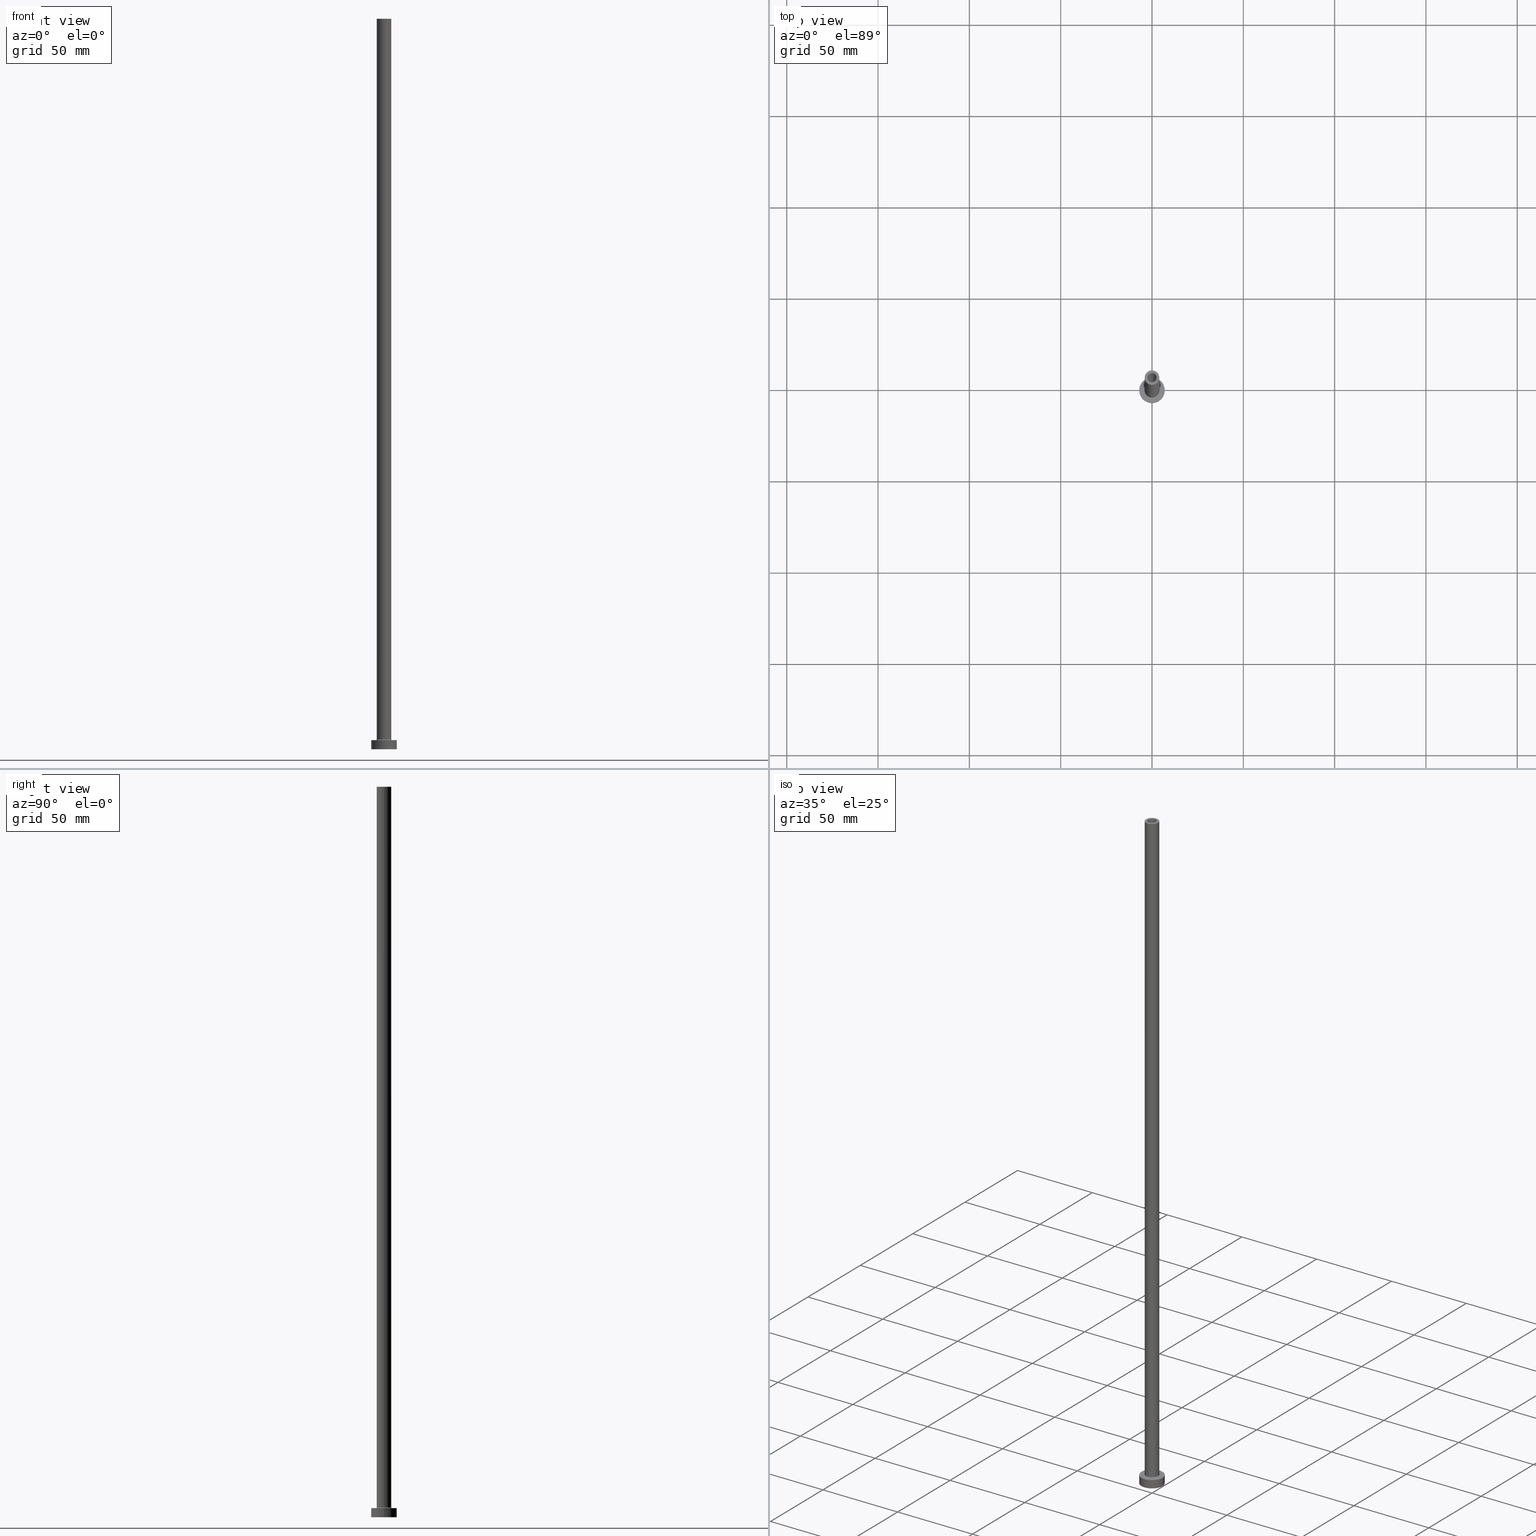
[diagram: canonical four-view strip — front | top / right | iso, engineering-drawing reading convention]
A machine part, canonical four-view strip (front | top / right | iso — engineering-drawing reading convention). The complete STEP part file that produces these views, byte-faithful:
ISO-10303-21;
HEADER;
FILE_DESCRIPTION (( 'STEP AP203' ),
    '1' );
FILE_NAME ('6f4e.STEP',
    '2023-02-13T17:09:35',
    ( '' ),
    ( '' ),
    'SwSTEP 2.0',
    'SolidWorks 2019',
    '' );
FILE_SCHEMA (( 'CONFIG_CONTROL_DESIGN' ));
ENDSEC;

DATA;
#1 = CARTESIAN_POINT ( 'NONE',  ( 0.000000000000000000, 0.000000000000000000, 355.0000000000000568 ) ) ;
#2 = ORIENTED_EDGE ( 'NONE', *, *, #404, .F. ) ;
#3 = AXIS2_PLACEMENT_3D ( 'NONE', #159, #332, #307 ) ;
#4 = ADVANCED_FACE ( 'NONE', ( #127, #188 ), #414, .F. ) ;
#5 = DIRECTION ( 'NONE',  ( -1.000000000000000000, 0.000000000000000000, 0.000000000000000000 ) ) ;
#6 = EDGE_CURVE ( 'NONE', #316, #295, #56, .T. ) ;
#7 = EDGE_LOOP ( 'NONE', ( #114, #183, #437, #357 ) ) ;
#8 = DIRECTION ( 'NONE',  ( 1.000000000000000000, 0.000000000000000000, 0.000000000000000000 ) ) ;
#9 = ORIENTED_EDGE ( 'NONE', *, *, #177, .F. ) ;
#10 = CIRCLE ( 'NONE', #160, 2.500000000000000000 ) ;
#11 = LOCAL_TIME ( 18, 9, 35.00000000000000000, #409 ) ;
#12 = DIRECTION ( 'NONE',  ( 0.000000000000000000, 0.000000000000000000, -1.000000000000000000 ) ) ;
#13 = ORIENTED_EDGE ( 'NONE', *, *, #343, .F. ) ;
#14 = CARTESIAN_POINT ( 'NONE',  ( -7.000000000000000000, 0.000000000000000000, 5.000000000000000000 ) ) ;
#15 = EDGE_LOOP ( 'NONE', ( #287, #112 ) ) ;
#16 = DIRECTION ( 'NONE',  ( 0.000000000000000000, 0.000000000000000000, -1.000000000000000000 ) ) ;
#17 = AXIS2_PLACEMENT_3D ( 'NONE', #423, #239, #27 ) ;
#18 = CIRCLE ( 'NONE', #368, 4.000000000000000000 ) ;
#19 = EDGE_CURVE ( 'NONE', #179, #295, #69, .T. ) ;
#20 = PERSON_AND_ORGANIZATION_ROLE ( 'creator' ) ;
#21 = CARTESIAN_POINT ( 'NONE',  ( -2.500000000000000000, 0.000000000000000000, 400.0000000000000000 ) ) ;
#22 = DIRECTION ( 'NONE',  ( 0.000000000000000000, 0.000000000000000000, -1.000000000000000000 ) ) ;
#23 = DESIGN_CONTEXT ( 'detailed design', #231, 'design' ) ;
#24 = DIRECTION ( 'NONE',  ( 1.000000000000000000, 0.000000000000000000, 0.000000000000000000 ) ) ;
#25 = MECHANICAL_CONTEXT ( 'NONE', #136, 'mechanical' ) ;
#26 = DIRECTION ( 'NONE',  ( -1.000000000000000000, 0.000000000000000000, 0.000000000000000000 ) ) ;
#27 = DIRECTION ( 'NONE',  ( 1.000000000000000000, 0.000000000000000000, -0.000000000000000000 ) ) ;
#28 = CC_DESIGN_DATE_AND_TIME_ASSIGNMENT ( #265, #372, ( #240 ) ) ;
#29 = FACE_OUTER_BOUND ( 'NONE', #220, .T. ) ;
#30 = ADVANCED_FACE ( 'NONE', ( #61 ), #441, .F. ) ;
#31 = AXIS2_PLACEMENT_3D ( 'NONE', #351, #436, #5 ) ;
#32 = CIRCLE ( 'NONE', #73, 7.000000000000000000 ) ;
#33 = CARTESIAN_POINT ( 'NONE',  ( -2.649999999999999911, 0.000000000000000000, 0.000000000000000000 ) ) ;
#34 = FACE_OUTER_BOUND ( 'NONE', #36, .T. ) ;
#35 = DIRECTION ( 'NONE',  ( -1.000000000000000000, 0.000000000000000000, 0.000000000000000000 ) ) ;
#36 = EDGE_LOOP ( 'NONE', ( #210, #247, #82, #364 ) ) ;
#37 = CIRCLE ( 'NONE', #46, 0.5000000000000004441 ) ;
#38 = DIRECTION ( 'NONE',  ( 1.000000000000000000, 0.000000000000000000, 0.000000000000000000 ) ) ;
#39 = FACE_OUTER_BOUND ( 'NONE', #7, .T. ) ;
#40 = VERTEX_POINT ( 'NONE', #225 ) ;
#41 = CC_DESIGN_PERSON_AND_ORGANIZATION_ASSIGNMENT ( #228, #156, ( #47 ) ) ;
#42 = LINE ( 'NONE', #150, #426 ) ;
#43 = ORIENTED_EDGE ( 'NONE', *, *, #413, .T. ) ;
#44 = CARTESIAN_POINT ( 'NONE',  ( 0.000000000000000000, 0.000000000000000000, 400.0000000000000000 ) ) ;
#45 = VERTEX_POINT ( 'NONE', #62 ) ;
#46 = AXIS2_PLACEMENT_3D ( 'NONE', #432, #72, #209 ) ;
#47 = PRODUCT_DEFINITION_FORMATION_WITH_SPECIFIED_SOURCE ( 'LIBOVOLN�', '', #422, .NOT_KNOWN. ) ;
#48 = CARTESIAN_POINT ( 'NONE',  ( 0.000000000000000000, 0.000000000000000000, 400.0000000000000000 ) ) ;
#49 = ORIENTED_EDGE ( 'NONE', *, *, #413, .F. ) ;
#50 = TOROIDAL_SURFACE ( 'NONE', #164, 4.500000000000000888, 0.5000000000000000000 ) ;
#51 = ORIENTED_EDGE ( 'NONE', *, *, #177, .T. ) ;
#52 = CALENDAR_DATE ( 2023, 13, 2 ) ;
#53 = ORIENTED_EDGE ( 'NONE', *, *, #346, .F. ) ;
#54 = CC_DESIGN_APPROVAL ( #245, ( #348 ) ) ;
#55 = PERSON_AND_ORGANIZATION_ROLE ( 'classification_officer' ) ;
#56 = LINE ( 'NONE', #302, #403 ) ;
#57 = DIRECTION ( 'NONE',  ( 1.000000000000000000, 0.000000000000000000, 0.000000000000000000 ) ) ;
#58 = ORIENTED_EDGE ( 'NONE', *, *, #99, .T. ) ;
#59 = UNCERTAINTY_MEASURE_WITH_UNIT (LENGTH_MEASURE( 1.000000000000000082E-05 ), #186, 'distance_accuracy_value', 'NONE');
#60 = DATE_AND_TIME ( #374, #308 ) ;
#61 = FACE_OUTER_BOUND ( 'NONE', #108, .T. ) ;
#62 = CARTESIAN_POINT ( 'NONE',  ( 4.000000000000000000, 4.898587196589411843E-16, 400.0000000000000000 ) ) ;
#63 = DIRECTION ( 'NONE',  ( 0.000000000000000000, 0.000000000000000000, -1.000000000000000000 ) ) ;
#64 = FACE_OUTER_BOUND ( 'NONE', #78, .T. ) ;
#65 = AXIS2_PLACEMENT_3D ( 'NONE', #205, #458, #350 ) ;
#66 = CARTESIAN_POINT ( 'NONE',  ( 4.500000000000000888, 0.000000000000000000, 5.000000000000002665 ) ) ;
#67 = DIRECTION ( 'NONE',  ( 0.000000000000000000, -1.000000000000000000, 0.000000000000000000 ) ) ;
#68 = EDGE_CURVE ( 'NONE', #242, #316, #129, .T. ) ;
#69 = CIRCLE ( 'NONE', #365, 7.000000000000000000 ) ;
#70 = FACE_OUTER_BOUND ( 'NONE', #410, .T. ) ;
#71 = ORIENTED_EDGE ( 'NONE', *, *, #306, .F. ) ;
#72 = DIRECTION ( 'NONE',  ( 1.224646799147353207E-16, 1.000000000000000000, -0.000000000000000000 ) ) ;
#73 = AXIS2_PLACEMENT_3D ( 'NONE', #294, #113, #173 ) ;
#74 = ORIENTED_EDGE ( 'NONE', *, *, #260, .T. ) ;
#75 = CARTESIAN_POINT ( 'NONE',  ( 7.000000000000000000, 8.572527594031473190E-16, 5.000000000000000000 ) ) ;
#76 = VERTEX_POINT ( 'NONE', #21 ) ;
#77 = CARTESIAN_POINT ( 'NONE',  ( 0.000000000000000000, 0.000000000000000000, 400.0000000000000000 ) ) ;
#78 = EDGE_LOOP ( 'NONE', ( #250, #227, #103, #74 ) ) ;
#79 = CARTESIAN_POINT ( 'NONE',  ( 2.649999999999999911, 3.245314017740485962E-16, 355.0000000000000568 ) ) ;
#80 = ORIENTED_EDGE ( 'NONE', *, *, #312, .T. ) ;
#81 = AXIS2_PLACEMENT_3D ( 'NONE', #133, #381, #345 ) ;
#82 = ORIENTED_EDGE ( 'NONE', *, *, #297, .F. ) ;
#83 = DIRECTION ( 'NONE',  ( 1.000000000000000000, 0.000000000000000000, 0.000000000000000000 ) ) ;
#84 = ORIENTED_EDGE ( 'NONE', *, *, #174, .F. ) ;
#85 = PERSON_AND_ORGANIZATION_ROLE ( 'creator' ) ;
#86 = EDGE_LOOP ( 'NONE', ( #202, #401, #71, #388 ) ) ;
#87 = CC_DESIGN_APPROVAL ( #457, ( #47 ) ) ;
#88 = DATE_TIME_ROLE ( 'classification_date' ) ;
#89 = DIRECTION ( 'NONE',  ( 0.000000000000000000, 0.000000000000000000, 1.000000000000000000 ) ) ;
#90 = PERSON_AND_ORGANIZATION ( #214, #320 ) ;
#91 = CARTESIAN_POINT ( 'NONE',  ( 0.000000000000000000, 0.000000000000000000, 5.000000000000000000 ) ) ;
#92 = EDGE_CURVE ( 'NONE', #216, #45, #184, .T. ) ;
#93 = ORIENTED_EDGE ( 'NONE', *, *, #421, .T. ) ;
#94 = EDGE_CURVE ( 'NONE', #76, #40, #263, .T. ) ;
#95 = LOCAL_TIME ( 18, 9, 35.00000000000000000, #443 ) ;
#96 = ADVANCED_FACE ( 'NONE', ( #444 ), #50, .F. ) ;
#97 = DIRECTION ( 'NONE',  ( 0.000000000000000000, 0.000000000000000000, -1.000000000000000000 ) ) ;
#98 = PLANE ( 'NONE',  #17 ) ;
#99 = EDGE_CURVE ( 'NONE', #185, #40, #223, .T. ) ;
#100 = CYLINDRICAL_SURFACE ( 'NONE', #172, 7.000000000000000000 ) ;
#101 = VECTOR ( 'NONE', #182, 1000.000000000000000 ) ;
#102 = DIRECTION ( 'NONE',  ( 0.000000000000000000, 0.000000000000000000, 1.000000000000000000 ) ) ;
#103 = ORIENTED_EDGE ( 'NONE', *, *, #174, .T. ) ;
#104 = DIRECTION ( 'NONE',  ( 1.000000000000000000, 0.000000000000000000, 0.000000000000000000 ) ) ;
#105 = SHAPE_DEFINITION_REPRESENTATION ( #411, #122 ) ;
#106 = EDGE_CURVE ( 'NONE', #316, #242, #199, .T. ) ;
#107 = DIRECTION ( 'NONE',  ( -0.000000000000000000, -0.000000000000000000, -1.000000000000000000 ) ) ;
#108 = EDGE_LOOP ( 'NONE', ( #261, #398, #304, #110 ) ) ;
#109 = CARTESIAN_POINT ( 'NONE',  ( 4.000000000000000000, 4.898587196589411843E-16, 400.0000000000000000 ) ) ;
#110 = ORIENTED_EDGE ( 'NONE', *, *, #99, .F. ) ;
#111 = CYLINDRICAL_SURFACE ( 'NONE', #187, 7.000000000000000000 ) ;
#112 = ORIENTED_EDGE ( 'NONE', *, *, #169, .T. ) ;
#113 = DIRECTION ( 'NONE',  ( 0.000000000000000000, 0.000000000000000000, 1.000000000000000000 ) ) ;
#114 = ORIENTED_EDGE ( 'NONE', *, *, #6, .F. ) ;
#115 = CARTESIAN_POINT ( 'NONE',  ( 0.000000000000000000, 0.000000000000000000, 5.500000000000005329 ) ) ;
#116 = ORIENTED_EDGE ( 'NONE', *, *, #312, .F. ) ;
#117 = PERSON_AND_ORGANIZATION ( #214, #320 ) ;
#118 = ORIENTED_EDGE ( 'NONE', *, *, #404, .T. ) ;
#119 = AXIS2_PLACEMENT_3D ( 'NONE', #266, #124, #375 ) ;
#120 = APPROVAL_DATE_TIME ( #335, #371 ) ;
#121 = DIRECTION ( 'NONE',  ( 0.000000000000000000, 0.000000000000000000, -1.000000000000000000 ) ) ;
#122 = ADVANCED_BREP_SHAPE_REPRESENTATION ( '6f4e', ( #415, #161 ), #237 ) ;
#123 = CALENDAR_DATE ( 2023, 13, 2 ) ;
#124 = DIRECTION ( 'NONE',  ( 0.000000000000000000, 0.000000000000000000, 1.000000000000000000 ) ) ;
#125 = AXIS2_PLACEMENT_3D ( 'NONE', #273, #63, #378 ) ;
#126 = APPLICATION_PROTOCOL_DEFINITION ( 'international standard', 'config_control_design', 1994, #136 ) ;
#127 = FACE_BOUND ( 'NONE', #394, .T. ) ;
#128 = APPROVAL_ROLE ( '' ) ;
#129 = CIRCLE ( 'NONE', #264, 7.000000000000000000 ) ;
#130 = ORIENTED_EDGE ( 'NONE', *, *, #106, .F. ) ;
#131 = CARTESIAN_POINT ( 'NONE',  ( -7.000000000000000000, 0.000000000000000000, 0.000000000000000000 ) ) ;
#132 = CIRCLE ( 'NONE', #81, 2.649999999999999911 ) ;
#133 = CARTESIAN_POINT ( 'NONE',  ( 0.000000000000000000, 0.000000000000000000, 0.000000000000000000 ) ) ;
#134 = CARTESIAN_POINT ( 'NONE',  ( 0.000000000000000000, 0.000000000000000000, 400.0000000000000000 ) ) ;
#135 = ORIENTED_EDGE ( 'NONE', *, *, #171, .F. ) ;
#136 = APPLICATION_CONTEXT ( 'configuration controlled 3d designs of mechanical parts and assemblies' ) ;
#137 = DIRECTION ( 'NONE',  ( -0.000000000000000000, -0.000000000000000000, -1.000000000000000000 ) ) ;
#138 = AXIS2_PLACEMENT_3D ( 'NONE', #115, #259, #57 ) ;
#139 = CARTESIAN_POINT ( 'NONE',  ( 0.000000000000000000, 0.000000000000000000, 400.0000000000000000 ) ) ;
#140 = EDGE_CURVE ( 'NONE', #324, #76, #198, .T. ) ;
#141 = CYLINDRICAL_SURFACE ( 'NONE', #203, 4.000000000000000000 ) ;
#142 = ORIENTED_EDGE ( 'NONE', *, *, #211, .T. ) ;
#143 = ADVANCED_FACE ( 'NONE', ( #449 ), #195, .F. ) ;
#144 = LINE ( 'NONE', #14, #360 ) ;
#145 = EDGE_LOOP ( 'NONE', ( #147, #2, #142, #331 ) ) ;
#146 = DIRECTION ( 'NONE',  ( 0.000000000000000000, 0.000000000000000000, 1.000000000000000000 ) ) ;
#147 = ORIENTED_EDGE ( 'NONE', *, *, #309, .F. ) ;
#148 = DIRECTION ( 'NONE',  ( 1.000000000000000000, 0.000000000000000000, 0.000000000000000000 ) ) ;
#149 = EDGE_LOOP ( 'NONE', ( #433, #58 ) ) ;
#150 = CARTESIAN_POINT ( 'NONE',  ( 2.500000000000000000, 3.061616997868382648E-16, 400.0000000000000000 ) ) ;
#151 = ORIENTED_EDGE ( 'NONE', *, *, #377, .F. ) ;
#152 =( NAMED_UNIT ( * ) PLANE_ANGLE_UNIT ( ) SI_UNIT ( $, .RADIAN. ) );
#153 = ORIENTED_EDGE ( 'NONE', *, *, #407, .T. ) ;
#154 = PERSON_AND_ORGANIZATION ( #214, #320 ) ;
#155 = CARTESIAN_POINT ( 'NONE',  ( -2.500000000000000000, 0.000000000000000000, 400.0000000000000000 ) ) ;
#156 = PERSON_AND_ORGANIZATION_ROLE ( 'design_supplier' ) ;
#157 = DIRECTION ( 'NONE',  ( 1.000000000000000000, 0.000000000000000000, 0.000000000000000000 ) ) ;
#158 = DIRECTION ( 'NONE',  ( 0.000000000000000000, 0.000000000000000000, 1.000000000000000000 ) ) ;
#159 = CARTESIAN_POINT ( 'NONE',  ( 0.000000000000000000, 0.000000000000000000, 400.0000000000000000 ) ) ;
#160 = AXIS2_PLACEMENT_3D ( 'NONE', #48, #219, #434 ) ;
#161 = AXIS2_PLACEMENT_3D ( 'NONE', #439, #158, #83 ) ;
#162 = PERSON_AND_ORGANIZATION ( #214, #320 ) ;
#163 = CARTESIAN_POINT ( 'NONE',  ( 0.000000000000000000, 0.000000000000000000, 5.000000000000000000 ) ) ;
#164 = AXIS2_PLACEMENT_3D ( 'NONE', #406, #339, #24 ) ;
#165 = CARTESIAN_POINT ( 'NONE',  ( -2.649999999999999911, 0.000000000000000000, 355.0000000000000568 ) ) ;
#166 = FACE_BOUND ( 'NONE', #15, .T. ) ;
#167 = CARTESIAN_POINT ( 'NONE',  ( 4.500000000000000888, 0.000000000000000000, 5.500000000000005329 ) ) ;
#168 = PLANE ( 'NONE',  #268 ) ;
#169 = EDGE_CURVE ( 'NONE', #392, #234, #333, .T. ) ;
#170 = DIRECTION ( 'NONE',  ( 0.000000000000000000, 0.000000000000000000, 1.000000000000000000 ) ) ;
#171 = EDGE_CURVE ( 'NONE', #181, #431, #132, .T. ) ;
#172 = AXIS2_PLACEMENT_3D ( 'NONE', #281, #425, #461 ) ;
#173 = DIRECTION ( 'NONE',  ( 1.000000000000000000, 0.000000000000000000, 0.000000000000000000 ) ) ;
#174 = EDGE_CURVE ( 'NONE', #216, #213, #276, .T. ) ;
#175 = DIRECTION ( 'NONE',  ( -0.000000000000000000, -0.000000000000000000, -1.000000000000000000 ) ) ;
#176 = EDGE_LOOP ( 'NONE', ( #130, #279, #93, #53 ) ) ;
#177 = EDGE_CURVE ( 'NONE', #431, #181, #236, .T. ) ;
#178 = DIRECTION ( 'NONE',  ( 0.000000000000000000, 0.000000000000000000, -1.000000000000000000 ) ) ;
#179 = VERTEX_POINT ( 'NONE', #131 ) ;
#180 = DIRECTION ( 'NONE',  ( 1.000000000000000000, 0.000000000000000000, 0.000000000000000000 ) ) ;
#181 = VERTEX_POINT ( 'NONE', #33 ) ;
#182 = DIRECTION ( 'NONE',  ( 0.000000000000000000, 0.000000000000000000, -1.000000000000000000 ) ) ;
#183 = ORIENTED_EDGE ( 'NONE', *, *, #68, .F. ) ;
#184 = CIRCLE ( 'NONE', #452, 4.000000000000000000 ) ;
#185 = VERTEX_POINT ( 'NONE', #384 ) ;
#186 =( LENGTH_UNIT ( ) NAMED_UNIT ( * ) SI_UNIT ( .MILLI., .METRE. ) );
#187 = AXIS2_PLACEMENT_3D ( 'NONE', #354, #175, #393 ) ;
#188 = FACE_OUTER_BOUND ( 'NONE', #459, .T. ) ;
#189 = VECTOR ( 'NONE', #12, 1000.000000000000000 ) ;
#190 = APPROVAL_STATUS ( 'not_yet_approved' ) ;
#191 = CARTESIAN_POINT ( 'NONE',  ( 0.000000000000000000, 0.000000000000000000, 0.000000000000000000 ) ) ;
#192 = APPROVAL_STATUS ( 'not_yet_approved' ) ;
#193 = DIRECTION ( 'NONE',  ( 0.000000000000000000, 0.000000000000000000, 1.000000000000000000 ) ) ;
#194 = CALENDAR_DATE ( 2023, 13, 2 ) ;
#195 = CYLINDRICAL_SURFACE ( 'NONE', #347, 2.649999999999999911 ) ;
#196 = CIRCLE ( 'NONE', #382, 0.5000000000000004441 ) ;
#197 = CYLINDRICAL_SURFACE ( 'NONE', #31, 2.649999999999999911 ) ;
#198 = CIRCLE ( 'NONE', #3, 2.500000000000000000 ) ;
#199 = CIRCLE ( 'NONE', #400, 7.000000000000000000 ) ;
#200 = CARTESIAN_POINT ( 'NONE',  ( -7.000000000000000000, 0.000000000000000000, 5.000000000000000000 ) ) ;
#201 = DIRECTION ( 'NONE',  ( 1.000000000000000000, 0.000000000000000000, 0.000000000000000000 ) ) ;
#202 = ORIENTED_EDGE ( 'NONE', *, *, #260, .F. ) ;
#203 = AXIS2_PLACEMENT_3D ( 'NONE', #77, #391, #322 ) ;
#204 = ADVANCED_FACE ( 'NONE', ( #427, #460 ), #98, .F. ) ;
#205 = CARTESIAN_POINT ( 'NONE',  ( 0.000000000000000000, 0.000000000000000000, 355.0000000000000568 ) ) ;
#206 = DIRECTION ( 'NONE',  ( 1.000000000000000000, 0.000000000000000000, -0.000000000000000000 ) ) ;
#207 = LINE ( 'NONE', #109, #251 ) ;
#208 = CIRCLE ( 'NONE', #300, 2.649999999999999911 ) ;
#209 = DIRECTION ( 'NONE',  ( -1.000000000000000000, 1.224646799147351482E-16, 0.000000000000000000 ) ) ;
#210 = ORIENTED_EDGE ( 'NONE', *, *, #377, .T. ) ;
#211 = EDGE_CURVE ( 'NONE', #380, #234, #196, .T. ) ;
#212 = CARTESIAN_POINT ( 'NONE',  ( 4.000000000000000000, 4.898587196589411843E-16, 5.500000000000005329 ) ) ;
#213 = VERTEX_POINT ( 'NONE', #313 ) ;
#214 = PERSON ( 'NEUR�EN�', 'NEUR�EN�', 'NEUR�EN�', ('NEUR�EN�'), ('NEUR�EN�'), ('NEUR�EN�') ) ;
#215 = CARTESIAN_POINT ( 'NONE',  ( 7.000000000000000000, 8.572527594031473190E-16, 0.000000000000000000 ) ) ;
#216 = VERTEX_POINT ( 'NONE', #248 ) ;
#217 = ADVANCED_FACE ( 'NONE', ( #64 ), #315, .T. ) ;
#218 = CIRCLE ( 'NONE', #283, 4.000000000000000000 ) ;
#219 = DIRECTION ( 'NONE',  ( 0.000000000000000000, 0.000000000000000000, 1.000000000000000000 ) ) ;
#220 = EDGE_LOOP ( 'NONE', ( #258, #153 ) ) ;
#221 =( NAMED_UNIT ( * ) SI_UNIT ( $, .STERADIAN. ) SOLID_ANGLE_UNIT ( ) );
#222 = ORIENTED_EDGE ( 'NONE', *, *, #421, .F. ) ;
#223 = CIRCLE ( 'NONE', #119, 2.500000000000000000 ) ;
#224 = APPLICATION_PROTOCOL_DEFINITION ( 'international standard', 'config_control_design', 1994, #231 ) ;
#225 = CARTESIAN_POINT ( 'NONE',  ( -2.500000000000000000, 0.000000000000000000, 355.0000000000000568 ) ) ;
#226 = CIRCLE ( 'NONE', #438, 4.000000000000000000 ) ;
#227 = ORIENTED_EDGE ( 'NONE', *, *, #92, .F. ) ;
#228 = PERSON_AND_ORGANIZATION ( #214, #320 ) ;
#229 = CARTESIAN_POINT ( 'NONE',  ( 0.000000000000000000, 0.000000000000000000, 400.0000000000000000 ) ) ;
#230 = CLOSED_SHELL ( 'NONE', ( #277, #143, #96, #323, #285, #318, #280, #4, #217, #267, #445, #293, #204, #30 ) ) ;
#231 = APPLICATION_CONTEXT ( 'configuration controlled 3d designs of mechanical parts and assemblies' ) ;
#232 = COORDINATED_UNIVERSAL_TIME_OFFSET ( 1, 0, .AHEAD. ) ;
#233 = DIRECTION ( 'NONE',  ( 1.000000000000000000, 0.000000000000000000, 0.000000000000000000 ) ) ;
#234 = VERTEX_POINT ( 'NONE', #66 ) ;
#235 = CIRCLE ( 'NONE', #455, 4.500000000000000888 ) ;
#236 = CIRCLE ( 'NONE', #341, 2.649999999999999911 ) ;
#237 =( GEOMETRIC_REPRESENTATION_CONTEXT ( 3 ) GLOBAL_UNCERTAINTY_ASSIGNED_CONTEXT ( ( #59 ) ) GLOBAL_UNIT_ASSIGNED_CONTEXT ( ( #186, #152, #221 ) ) REPRESENTATION_CONTEXT ( 'NONE', 'WORKASPACE' ) );
#238 = FACE_BOUND ( 'NONE', #429, .T. ) ;
#239 = DIRECTION ( 'NONE',  ( 0.000000000000000000, 0.000000000000000000, 1.000000000000000000 ) ) ;
#240 = PRODUCT_DEFINITION ( 'NEZN�M�', '', #47, #23 ) ;
#241 = DIRECTION ( 'NONE',  ( -0.000000000000000000, -0.000000000000000000, -1.000000000000000000 ) ) ;
#242 = VERTEX_POINT ( 'NONE', #200 ) ;
#243 = AXIS2_PLACEMENT_3D ( 'NONE', #424, #170, #319 ) ;
#244 = LOCAL_TIME ( 18, 9, 35.00000000000000000, #269 ) ;
#245 = APPROVAL ( #192, 'NEUR�EN�' ) ;
#246 = FACE_OUTER_BOUND ( 'NONE', #367, .T. ) ;
#247 = ORIENTED_EDGE ( 'NONE', *, *, #402, .T. ) ;
#248 = CARTESIAN_POINT ( 'NONE',  ( -4.000000000000000000, 0.000000000000000000, 400.0000000000000000 ) ) ;
#249 = VECTOR ( 'NONE', #121, 1000.000000000000000 ) ;
#250 = ORIENTED_EDGE ( 'NONE', *, *, #353, .F. ) ;
#251 = VECTOR ( 'NONE', #286, 1000.000000000000000 ) ;
#252 = APPROVAL_PERSON_ORGANIZATION ( #117, #371, #399 ) ;
#253 = DIRECTION ( 'NONE',  ( 1.000000000000000000, 0.000000000000000000, 0.000000000000000000 ) ) ;
#254 = EDGE_LOOP ( 'NONE', ( #292, #328, #51, #49 ) ) ;
#255 = DIRECTION ( 'NONE',  ( 0.000000000000000000, 0.000000000000000000, 1.000000000000000000 ) ) ;
#256 = VERTEX_POINT ( 'NONE', #165 ) ;
#257 = FACE_OUTER_BOUND ( 'NONE', #145, .T. ) ;
#258 = ORIENTED_EDGE ( 'NONE', *, *, #92, .T. ) ;
#259 = DIRECTION ( 'NONE',  ( 0.000000000000000000, 0.000000000000000000, 1.000000000000000000 ) ) ;
#260 = EDGE_CURVE ( 'NONE', #213, #380, #226, .T. ) ;
#261 = ORIENTED_EDGE ( 'NONE', *, *, #402, .F. ) ;
#262 = EDGE_CURVE ( 'NONE', #256, #362, #418, .T. ) ;
#263 = LINE ( 'NONE', #155, #249 ) ;
#264 = AXIS2_PLACEMENT_3D ( 'NONE', #91, #336, #157 ) ;
#265 = DATE_AND_TIME ( #194, #244 ) ;
#266 = CARTESIAN_POINT ( 'NONE',  ( 0.000000000000000000, 0.000000000000000000, 355.0000000000000568 ) ) ;
#267 = ADVANCED_FACE ( 'NONE', ( #238, #29 ), #168, .T. ) ;
#268 = AXIS2_PLACEMENT_3D ( 'NONE', #134, #102, #206 ) ;
#269 = COORDINATED_UNIVERSAL_TIME_OFFSET ( 1, 0, .AHEAD. ) ;
#270 = CARTESIAN_POINT ( 'NONE',  ( 0.000000000000000000, 0.000000000000000000, 0.000000000000000000 ) ) ;
#271 = AXIS2_PLACEMENT_3D ( 'NONE', #270, #370, #303 ) ;
#272 = CARTESIAN_POINT ( 'NONE',  ( 0.000000000000000000, 0.000000000000000000, 400.0000000000000000 ) ) ;
#273 = CARTESIAN_POINT ( 'NONE',  ( 0.000000000000000000, 0.000000000000000000, 400.0000000000000000 ) ) ;
#274 = ORIENTED_EDGE ( 'NONE', *, *, #353, .T. ) ;
#275 = APPROVAL_PERSON_ORGANIZATION ( #90, #245, #128 ) ;
#276 = LINE ( 'NONE', #314, #396 ) ;
#277 = ADVANCED_FACE ( 'NONE', ( #34 ), #278, .F. ) ;
#278 = CYLINDRICAL_SURFACE ( 'NONE', #125, 2.500000000000000000 ) ;
#279 = ORIENTED_EDGE ( 'NONE', *, *, #6, .T. ) ;
#280 = ADVANCED_FACE ( 'NONE', ( #166, #246 ), #317, .T. ) ;
#281 = CARTESIAN_POINT ( 'NONE',  ( 0.000000000000000000, 0.000000000000000000, 5.000000000000000000 ) ) ;
#282 = AXIS2_PLACEMENT_3D ( 'NONE', #311, #241, #201 ) ;
#283 = AXIS2_PLACEMENT_3D ( 'NONE', #325, #358, #8 ) ;
#284 = FACE_OUTER_BOUND ( 'NONE', #420, .T. ) ;
#285 = ADVANCED_FACE ( 'NONE', ( #419 ), #100, .T. ) ;
#286 = DIRECTION ( 'NONE',  ( -0.000000000000000000, -0.000000000000000000, -1.000000000000000000 ) ) ;
#287 = ORIENTED_EDGE ( 'NONE', *, *, #306, .T. ) ;
#288 = CARTESIAN_POINT ( 'NONE',  ( 2.500000000000000000, 3.061616997868382648E-16, 400.0000000000000000 ) ) ;
#289 = ORIENTED_EDGE ( 'NONE', *, *, #106, .T. ) ;
#290 = CIRCLE ( 'NONE', #408, 2.500000000000000000 ) ;
#291 = DIRECTION ( 'NONE',  ( 0.000000000000000000, 0.000000000000000000, 1.000000000000000000 ) ) ;
#292 = ORIENTED_EDGE ( 'NONE', *, *, #262, .T. ) ;
#293 = ADVANCED_FACE ( 'NONE', ( #284 ), #197, .F. ) ;
#294 = CARTESIAN_POINT ( 'NONE',  ( 0.000000000000000000, 0.000000000000000000, 0.000000000000000000 ) ) ;
#295 = VERTEX_POINT ( 'NONE', #215 ) ;
#296 = CC_DESIGN_DATE_AND_TIME_ASSIGNMENT ( #337, #88, ( #348 ) ) ;
#297 = EDGE_CURVE ( 'NONE', #40, #185, #290, .T. ) ;
#298 = CARTESIAN_POINT ( 'NONE',  ( 2.649999999999999911, 3.245314017740485962E-16, 0.000000000000000000 ) ) ;
#299 = ORIENTED_EDGE ( 'NONE', *, *, #407, .F. ) ;
#300 = AXIS2_PLACEMENT_3D ( 'NONE', #1, #255, #253 ) ;
#301 = CC_DESIGN_SECURITY_CLASSIFICATION ( #348, ( #47 ) ) ;
#302 = CARTESIAN_POINT ( 'NONE',  ( 7.000000000000000000, 8.572527594031473190E-16, 5.000000000000000000 ) ) ;
#303 = DIRECTION ( 'NONE',  ( 1.000000000000000000, 0.000000000000000000, -0.000000000000000000 ) ) ;
#304 = ORIENTED_EDGE ( 'NONE', *, *, #94, .T. ) ;
#305 = PERSON_AND_ORGANIZATION_ROLE ( 'design_owner' ) ;
#306 = EDGE_CURVE ( 'NONE', #234, #392, #235, .T. ) ;
#307 = DIRECTION ( 'NONE',  ( 1.000000000000000000, 0.000000000000000000, 0.000000000000000000 ) ) ;
#308 = LOCAL_TIME ( 18, 9, 35.00000000000000000, #232 ) ;
#309 = EDGE_CURVE ( 'NONE', #213, #392, #37, .T. ) ;
#310 = APPROVAL_STATUS ( 'not_yet_approved' ) ;
#311 = CARTESIAN_POINT ( 'NONE',  ( 0.000000000000000000, 0.000000000000000000, 5.000000000000000000 ) ) ;
#312 = EDGE_CURVE ( 'NONE', #362, #256, #208, .T. ) ;
#313 = CARTESIAN_POINT ( 'NONE',  ( -4.000000000000000000, 0.000000000000000000, 5.500000000000005329 ) ) ;
#314 = CARTESIAN_POINT ( 'NONE',  ( -4.000000000000000000, 0.000000000000000000, 400.0000000000000000 ) ) ;
#315 = CYLINDRICAL_SURFACE ( 'NONE', #446, 4.000000000000000000 ) ;
#316 = VERTEX_POINT ( 'NONE', #75 ) ;
#317 = PLANE ( 'NONE',  #243 ) ;
#318 = ADVANCED_FACE ( 'NONE', ( #39 ), #111, .T. ) ;
#319 = DIRECTION ( 'NONE',  ( 1.000000000000000000, 0.000000000000000000, -0.000000000000000000 ) ) ;
#320 = ORGANIZATION ( 'NEUR�EN�', 'NEUR�EN�', '' ) ;
#321 = CARTESIAN_POINT ( 'NONE',  ( 0.000000000000000000, 0.000000000000000000, 5.000000000000000000 ) ) ;
#322 = DIRECTION ( 'NONE',  ( -1.000000000000000000, 0.000000000000000000, 0.000000000000000000 ) ) ;
#323 = ADVANCED_FACE ( 'NONE', ( #70 ), #141, .T. ) ;
#324 = VERTEX_POINT ( 'NONE', #288 ) ;
#325 = CARTESIAN_POINT ( 'NONE',  ( 0.000000000000000000, 0.000000000000000000, 5.500000000000005329 ) ) ;
#326 = ORIENTED_EDGE ( 'NONE', *, *, #140, .F. ) ;
#327 = LINE ( 'NONE', #330, #189 ) ;
#328 = ORIENTED_EDGE ( 'NONE', *, *, #343, .T. ) ;
#329 = CC_DESIGN_PERSON_AND_ORGANIZATION_ASSIGNMENT ( #369, #55, ( #348 ) ) ;
#330 = CARTESIAN_POINT ( 'NONE',  ( -2.649999999999999911, 0.000000000000000000, 362.4953318805773961 ) ) ;
#331 = ORIENTED_EDGE ( 'NONE', *, *, #169, .F. ) ;
#332 = DIRECTION ( 'NONE',  ( 0.000000000000000000, 0.000000000000000000, 1.000000000000000000 ) ) ;
#333 = CIRCLE ( 'NONE', #282, 4.500000000000000888 ) ;
#334 = TOROIDAL_SURFACE ( 'NONE', #138, 4.500000000000000888, 0.5000000000000000000 ) ;
#335 = DATE_AND_TIME ( #448, #389 ) ;
#336 = DIRECTION ( 'NONE',  ( 0.000000000000000000, 0.000000000000000000, 1.000000000000000000 ) ) ;
#337 = DATE_AND_TIME ( #123, #11 ) ;
#338 = DIRECTION ( 'NONE',  ( 0.000000000000000000, 0.000000000000000000, 1.000000000000000000 ) ) ;
#339 = DIRECTION ( 'NONE',  ( 0.000000000000000000, 0.000000000000000000, 1.000000000000000000 ) ) ;
#340 = COORDINATED_UNIVERSAL_TIME_OFFSET ( 1, 0, .AHEAD. ) ;
#341 = AXIS2_PLACEMENT_3D ( 'NONE', #379, #386, #456 ) ;
#342 = CARTESIAN_POINT ( 'NONE',  ( 0.000000000000000000, 0.000000000000000000, 362.4953318805773961 ) ) ;
#343 = EDGE_CURVE ( 'NONE', #362, #431, #428, .T. ) ;
#344 = DIRECTION ( 'NONE',  ( -0.000000000000000000, -0.000000000000000000, -1.000000000000000000 ) ) ;
#345 = DIRECTION ( 'NONE',  ( 1.000000000000000000, 0.000000000000000000, 0.000000000000000000 ) ) ;
#346 = EDGE_CURVE ( 'NONE', #242, #179, #144, .T. ) ;
#347 = AXIS2_PLACEMENT_3D ( 'NONE', #342, #16, #26 ) ;
#348 = SECURITY_CLASSIFICATION ( '', '', #397 ) ;
#349 = DIRECTION ( 'NONE',  ( 0.000000000000000000, 0.000000000000000000, 1.000000000000000000 ) ) ;
#350 = DIRECTION ( 'NONE',  ( 1.000000000000000000, 0.000000000000000000, 0.000000000000000000 ) ) ;
#351 = CARTESIAN_POINT ( 'NONE',  ( 0.000000000000000000, 0.000000000000000000, 362.4953318805773961 ) ) ;
#352 = PRODUCT_RELATED_PRODUCT_CATEGORY ( 'detail', '', ( #422 ) ) ;
#353 = EDGE_CURVE ( 'NONE', #45, #380, #207, .T. ) ;
#354 = CARTESIAN_POINT ( 'NONE',  ( 0.000000000000000000, 0.000000000000000000, 5.000000000000000000 ) ) ;
#355 = ORIENTED_EDGE ( 'NONE', *, *, #171, .T. ) ;
#356 = CARTESIAN_POINT ( 'NONE',  ( -4.500000000000000888, 5.510910596163088569E-16, 5.000000000000002665 ) ) ;
#357 = ORIENTED_EDGE ( 'NONE', *, *, #19, .T. ) ;
#358 = DIRECTION ( 'NONE',  ( 0.000000000000000000, 0.000000000000000000, 1.000000000000000000 ) ) ;
#359 = ORIENTED_EDGE ( 'NONE', *, *, #19, .F. ) ;
#360 = VECTOR ( 'NONE', #430, 1000.000000000000000 ) ;
#361 = CARTESIAN_POINT ( 'NONE',  ( 0.000000000000000000, 0.000000000000000000, 355.0000000000000568 ) ) ;
#362 = VERTEX_POINT ( 'NONE', #79 ) ;
#363 = PERSON_AND_ORGANIZATION ( #214, #320 ) ;
#364 = ORIENTED_EDGE ( 'NONE', *, *, #94, .F. ) ;
#365 = AXIS2_PLACEMENT_3D ( 'NONE', #191, #338, #417 ) ;
#366 = PERSON_AND_ORGANIZATION ( #214, #320 ) ;
#367 = EDGE_LOOP ( 'NONE', ( #451, #289 ) ) ;
#368 = AXIS2_PLACEMENT_3D ( 'NONE', #44, #291, #180 ) ;
#369 = PERSON_AND_ORGANIZATION ( #214, #320 ) ;
#370 = DIRECTION ( 'NONE',  ( 0.000000000000000000, 0.000000000000000000, 1.000000000000000000 ) ) ;
#371 = APPROVAL ( #190, 'NEUR�EN�' ) ;
#372 = DATE_TIME_ROLE ( 'creation_date' ) ;
#373 = DIRECTION ( 'NONE',  ( 1.000000000000000000, 0.000000000000000000, 0.000000000000000000 ) ) ;
#374 = CALENDAR_DATE ( 2023, 13, 2 ) ;
#375 = DIRECTION ( 'NONE',  ( 1.000000000000000000, 0.000000000000000000, 0.000000000000000000 ) ) ;
#376 = DIRECTION ( 'NONE',  ( -0.000000000000000000, -0.000000000000000000, -1.000000000000000000 ) ) ;
#377 = EDGE_CURVE ( 'NONE', #76, #324, #10, .T. ) ;
#378 = DIRECTION ( 'NONE',  ( -1.000000000000000000, 0.000000000000000000, 0.000000000000000000 ) ) ;
#379 = CARTESIAN_POINT ( 'NONE',  ( 0.000000000000000000, 0.000000000000000000, 0.000000000000000000 ) ) ;
#380 = VERTEX_POINT ( 'NONE', #212 ) ;
#381 = DIRECTION ( 'NONE',  ( -0.000000000000000000, -0.000000000000000000, -1.000000000000000000 ) ) ;
#382 = AXIS2_PLACEMENT_3D ( 'NONE', #167, #67, #97 ) ;
#383 = APPROVAL_PERSON_ORGANIZATION ( #162, #457, #450 ) ;
#384 = CARTESIAN_POINT ( 'NONE',  ( 2.500000000000000000, 3.061616997868382648E-16, 355.0000000000000568 ) ) ;
#385 = AXIS2_PLACEMENT_3D ( 'NONE', #272, #22, #442 ) ;
#386 = DIRECTION ( 'NONE',  ( -0.000000000000000000, -0.000000000000000000, -1.000000000000000000 ) ) ;
#387 = CARTESIAN_POINT ( 'NONE',  ( 2.649999999999999911, 3.245314017740485962E-16, 362.4953318805773961 ) ) ;
#388 = ORIENTED_EDGE ( 'NONE', *, *, #211, .F. ) ;
#389 = LOCAL_TIME ( 18, 9, 35.00000000000000000, #340 ) ;
#390 = APPROVAL_DATE_TIME ( #60, #245 ) ;
#391 = DIRECTION ( 'NONE',  ( -0.000000000000000000, -0.000000000000000000, -1.000000000000000000 ) ) ;
#392 = VERTEX_POINT ( 'NONE', #356 ) ;
#393 = DIRECTION ( 'NONE',  ( -1.000000000000000000, 0.000000000000000000, 0.000000000000000000 ) ) ;
#394 = EDGE_LOOP ( 'NONE', ( #135, #9 ) ) ;
#395 = EDGE_LOOP ( 'NONE', ( #435, #116 ) ) ;
#396 = VECTOR ( 'NONE', #137, 1000.000000000000000 ) ;
#397 = SECURITY_CLASSIFICATION_LEVEL ( 'unclassified' ) ;
#398 = ORIENTED_EDGE ( 'NONE', *, *, #140, .T. ) ;
#399 = APPROVAL_ROLE ( '' ) ;
#400 = AXIS2_PLACEMENT_3D ( 'NONE', #163, #89, #373 ) ;
#401 = ORIENTED_EDGE ( 'NONE', *, *, #309, .T. ) ;
#402 = EDGE_CURVE ( 'NONE', #324, #185, #42, .T. ) ;
#403 = VECTOR ( 'NONE', #376, 1000.000000000000000 ) ;
#404 = EDGE_CURVE ( 'NONE', #380, #213, #218, .T. ) ;
#405 = APPROVAL_DATE_TIME ( #412, #457 ) ;
#406 = CARTESIAN_POINT ( 'NONE',  ( 0.000000000000000000, 0.000000000000000000, 5.500000000000005329 ) ) ;
#407 = EDGE_CURVE ( 'NONE', #45, #216, #18, .T. ) ;
#408 = AXIS2_PLACEMENT_3D ( 'NONE', #361, #146, #38 ) ;
#409 = COORDINATED_UNIVERSAL_TIME_OFFSET ( 1, 0, .AHEAD. ) ;
#410 = EDGE_LOOP ( 'NONE', ( #299, #274, #118, #84 ) ) ;
#411 = PRODUCT_DEFINITION_SHAPE ( 'NONE', 'NONE',  #240 ) ;
#412 = DATE_AND_TIME ( #52, #95 ) ;
#413 = EDGE_CURVE ( 'NONE', #256, #181, #327, .T. ) ;
#414 = PLANE ( 'NONE',  #271 ) ;
#415 = MANIFOLD_SOLID_BREP ( 'Odebrat vysunut�m4', #230 ) ;
#416 = CC_DESIGN_PERSON_AND_ORGANIZATION_ASSIGNMENT ( #366, #20, ( #240 ) ) ;
#417 = DIRECTION ( 'NONE',  ( 1.000000000000000000, 0.000000000000000000, 0.000000000000000000 ) ) ;
#418 = CIRCLE ( 'NONE', #65, 2.649999999999999911 ) ;
#419 = FACE_OUTER_BOUND ( 'NONE', #176, .T. ) ;
#420 = EDGE_LOOP ( 'NONE', ( #13, #80, #43, #355 ) ) ;
#421 = EDGE_CURVE ( 'NONE', #295, #179, #32, .T. ) ;
#422 = PRODUCT ( '6f4e', '6f4e', '', ( #25 ) ) ;
#423 = CARTESIAN_POINT ( 'NONE',  ( 0.000000000000000000, 0.000000000000000000, 355.0000000000000568 ) ) ;
#424 = CARTESIAN_POINT ( 'NONE',  ( 0.000000000000000000, 0.000000000000000000, 5.000000000000000000 ) ) ;
#425 = DIRECTION ( 'NONE',  ( -0.000000000000000000, -0.000000000000000000, -1.000000000000000000 ) ) ;
#426 = VECTOR ( 'NONE', #178, 1000.000000000000000 ) ;
#427 = FACE_BOUND ( 'NONE', #149, .T. ) ;
#428 = LINE ( 'NONE', #387, #101 ) ;
#429 = EDGE_LOOP ( 'NONE', ( #151, #326 ) ) ;
#430 = DIRECTION ( 'NONE',  ( -0.000000000000000000, -0.000000000000000000, -1.000000000000000000 ) ) ;
#431 = VERTEX_POINT ( 'NONE', #298 ) ;
#432 = CARTESIAN_POINT ( 'NONE',  ( -4.500000000000000888, 5.510910596163089556E-16, 5.500000000000005329 ) ) ;
#433 = ORIENTED_EDGE ( 'NONE', *, *, #297, .T. ) ;
#434 = DIRECTION ( 'NONE',  ( 1.000000000000000000, 0.000000000000000000, 0.000000000000000000 ) ) ;
#435 = ORIENTED_EDGE ( 'NONE', *, *, #262, .F. ) ;
#436 = DIRECTION ( 'NONE',  ( 0.000000000000000000, 0.000000000000000000, -1.000000000000000000 ) ) ;
#437 = ORIENTED_EDGE ( 'NONE', *, *, #346, .T. ) ;
#438 = AXIS2_PLACEMENT_3D ( 'NONE', #454, #349, #104 ) ;
#439 = CARTESIAN_POINT ( 'NONE',  ( 0.000000000000000000, 0.000000000000000000, 0.000000000000000000 ) ) ;
#440 = CC_DESIGN_PERSON_AND_ORGANIZATION_ASSIGNMENT ( #363, #85, ( #47 ) ) ;
#441 = CYLINDRICAL_SURFACE ( 'NONE', #385, 2.500000000000000000 ) ;
#442 = DIRECTION ( 'NONE',  ( -1.000000000000000000, 0.000000000000000000, 0.000000000000000000 ) ) ;
#443 = COORDINATED_UNIVERSAL_TIME_OFFSET ( 1, 0, .AHEAD. ) ;
#444 = FACE_OUTER_BOUND ( 'NONE', #86, .T. ) ;
#445 = ADVANCED_FACE ( 'NONE', ( #257 ), #334, .F. ) ;
#446 = AXIS2_PLACEMENT_3D ( 'NONE', #139, #344, #35 ) ;
#447 = CC_DESIGN_APPROVAL ( #371, ( #240 ) ) ;
#448 = CALENDAR_DATE ( 2023, 13, 2 ) ;
#449 = FACE_OUTER_BOUND ( 'NONE', #254, .T. ) ;
#450 = APPROVAL_ROLE ( '' ) ;
#451 = ORIENTED_EDGE ( 'NONE', *, *, #68, .T. ) ;
#452 = AXIS2_PLACEMENT_3D ( 'NONE', #229, #193, #233 ) ;
#453 = CC_DESIGN_PERSON_AND_ORGANIZATION_ASSIGNMENT ( #154, #305, ( #422 ) ) ;
#454 = CARTESIAN_POINT ( 'NONE',  ( 0.000000000000000000, 0.000000000000000000, 5.500000000000005329 ) ) ;
#455 = AXIS2_PLACEMENT_3D ( 'NONE', #321, #107, #148 ) ;
#456 = DIRECTION ( 'NONE',  ( 1.000000000000000000, 0.000000000000000000, 0.000000000000000000 ) ) ;
#457 = APPROVAL ( #310, 'NEUR�EN�' ) ;
#458 = DIRECTION ( 'NONE',  ( 0.000000000000000000, 0.000000000000000000, 1.000000000000000000 ) ) ;
#459 = EDGE_LOOP ( 'NONE', ( #359, #222 ) ) ;
#460 = FACE_OUTER_BOUND ( 'NONE', #395, .T. ) ;
#461 = DIRECTION ( 'NONE',  ( -1.000000000000000000, 0.000000000000000000, 0.000000000000000000 ) ) ;
ENDSEC;
END-ISO-10303-21;
